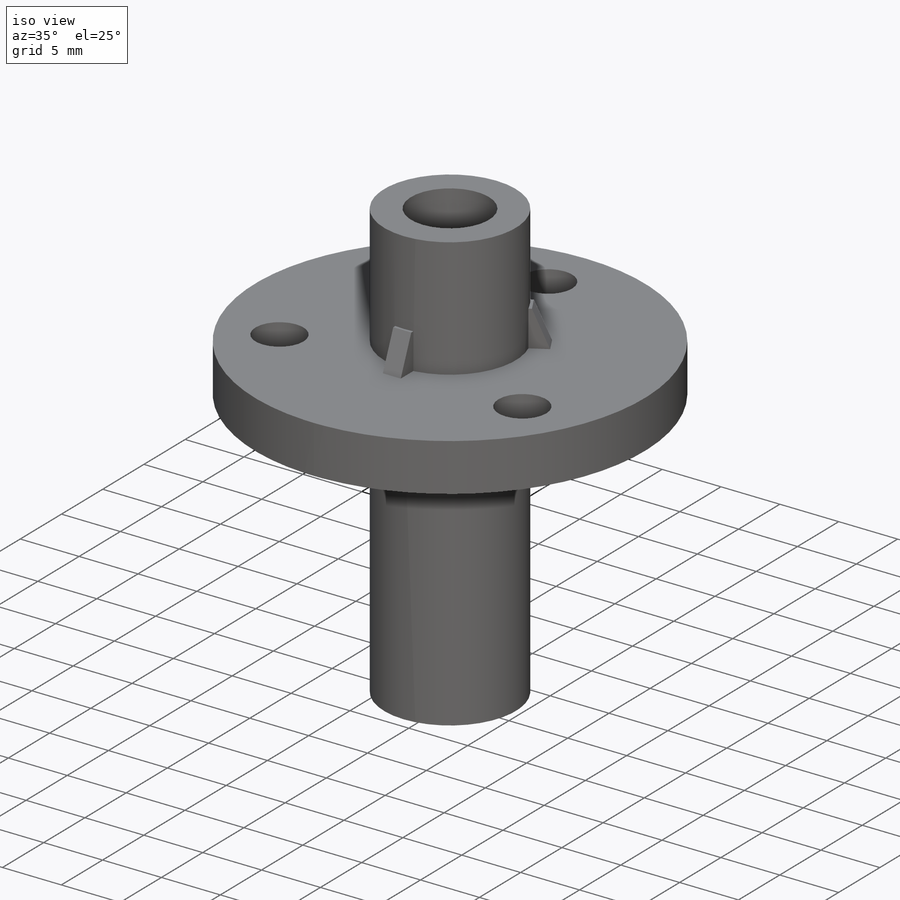
[diagram: iso view]
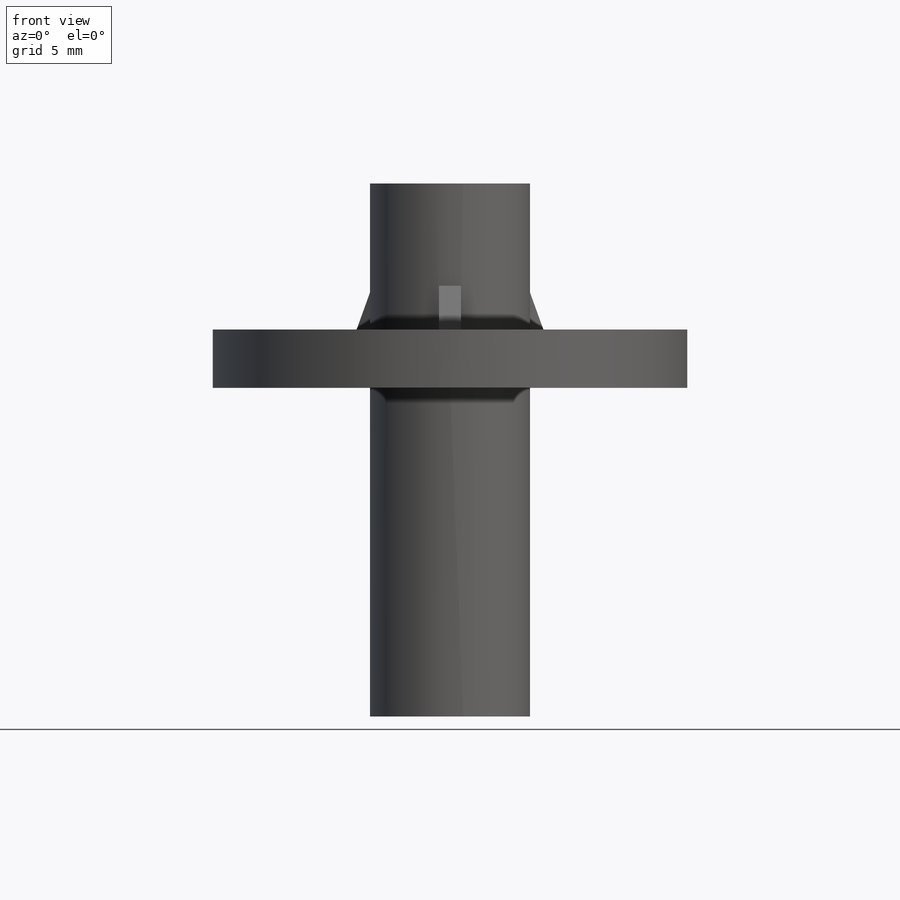
[diagram: front view]
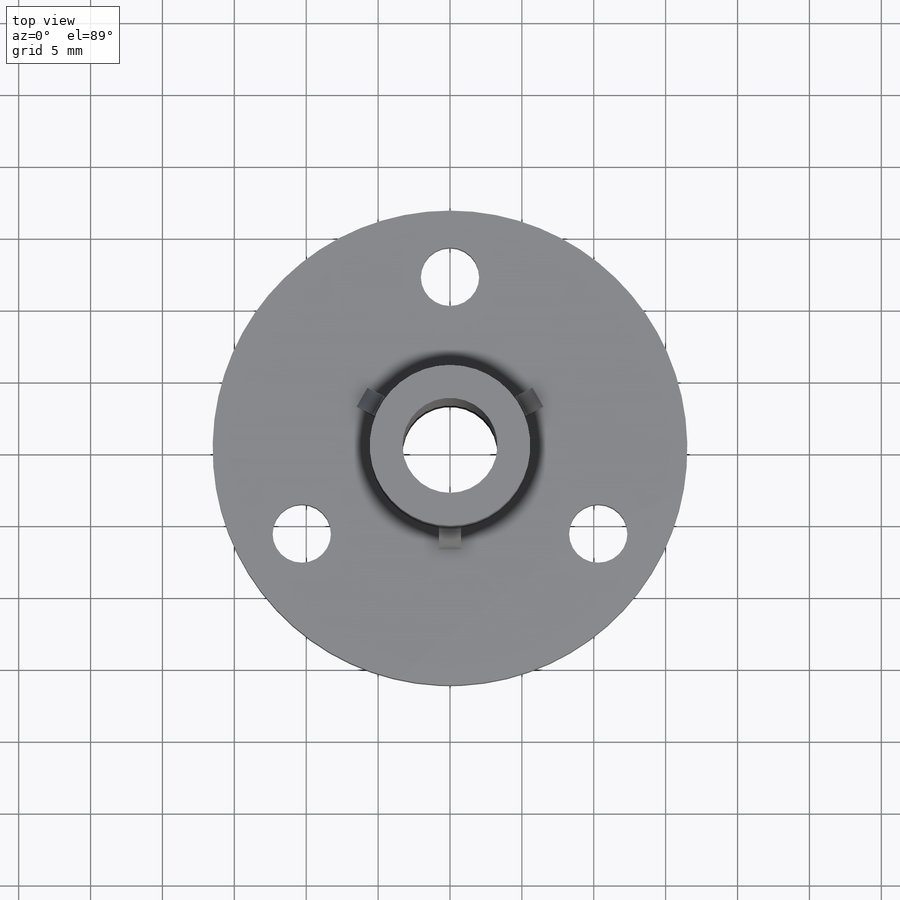
[diagram: top view]
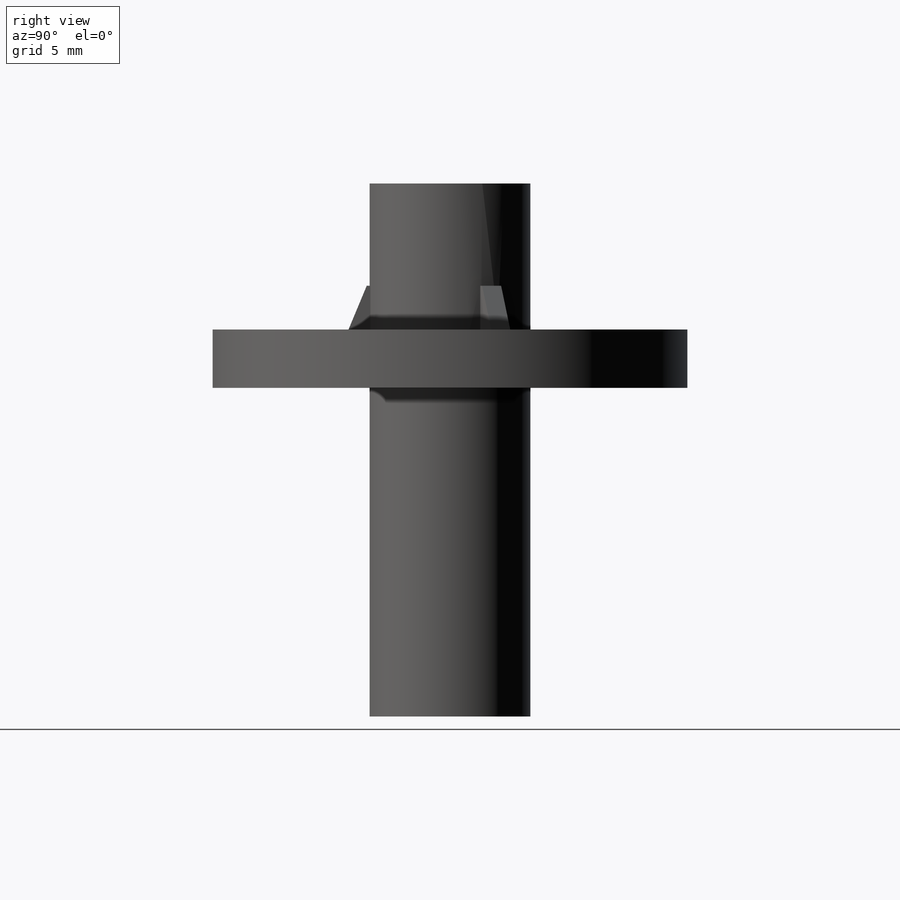
[diagram: right view]
SOLIDWORKS PART (.sldprt)
format: sldprt  version: not decoded by parser v0  size: 184,832 bytes
history: native  units: mm
features: sketch x7, extrude x4, cut_extrude x2, pattern_circular x2, material x1, chamfer x1 (+13 scaffold rows collapsed)
feature tree (30):
  scaffold x13  (default folders/planes/origin — collapsed)
  material  "Material <not specified>"
  sketch  "Sketch1"  dims[D1=33.02mm]
  extrude  "disc_base"  Depth=4.064mm
  sketch  "Sketch2"  dims[D1=11.176mm]
  extrude  "top_post"  Depth=10.16mm
  sketch  "Sketch3"
  extrude  "bottom_post"  Depth=22.86mm
  sketch  "Sketch4"  dims[D1=6.604mm]
  cut_extrude  "hole_thru"  [1 undecoded]
  sketch  "Sketch5"  dims[D1=1.524mm D2=1.524mm]
  extrude  "gusset"  Depth=5.08mm
  pattern_circular  "CirPattern1"  Count=3 Angle=360deg
  chamfer  "Chamfer1"  Distance=3.048mm
  sketch  "Sketch6"  dims[D1=4.064mm D2=~11.90625mm]
  cut_extrude  "holes"  [1 undecoded]
  pattern_circular  "CirPattern2"  Count=3 Angle=360deg
  sketch  "Sketch7"  dims[D1=6.35mm]
decode coverage: 13 of 16 modeling features carry decoded parameters
note: ~ marks probable driven/reference dimensions
note: 2 parameter values undecoded
note: suppression state not decoded; provenance and decode notes live in map.json
